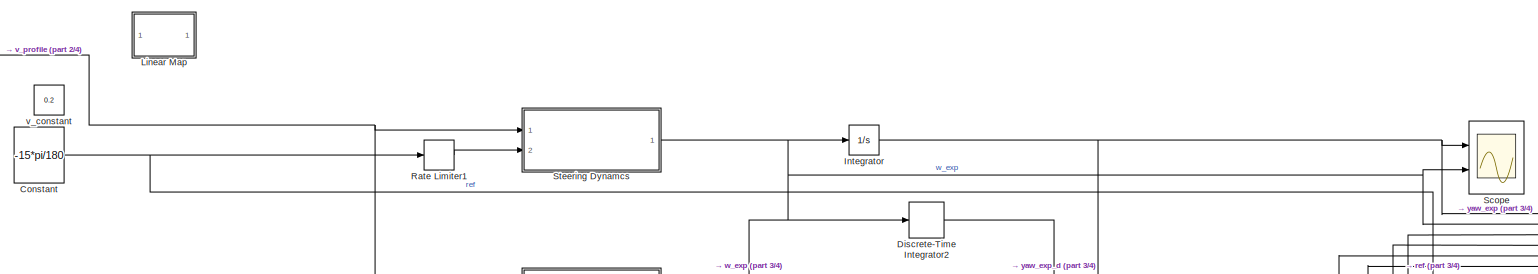
[diagram: root canvas - part 1/4, full width, top band]
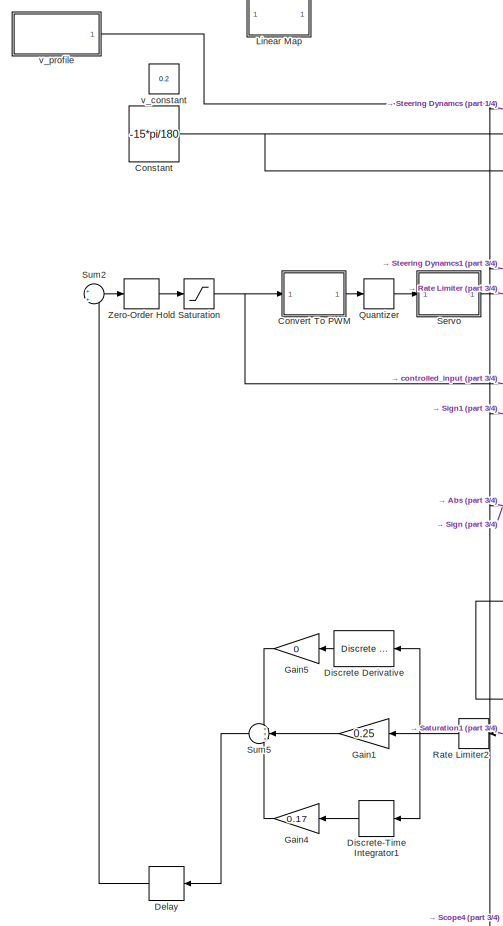
[diagram: root canvas - part 2/4, middle left region]
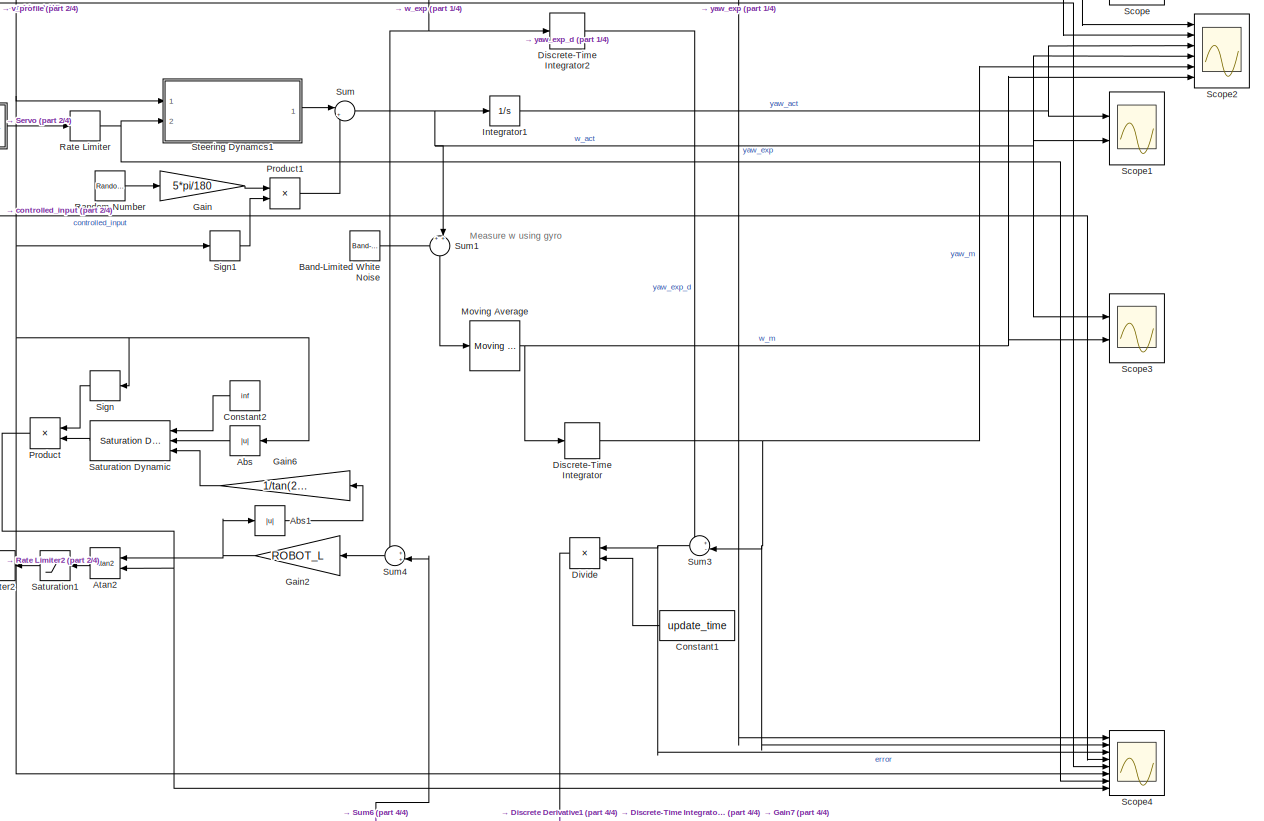
[diagram: root canvas - part 3/4, central region]
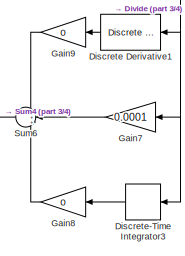
[diagram: root canvas - part 4/4, bottom center region]
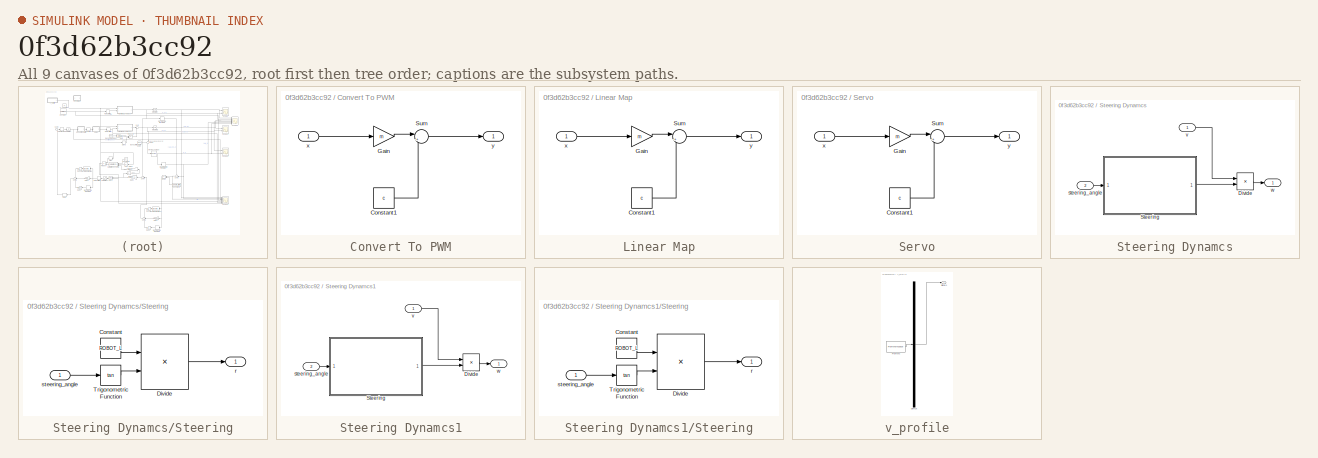
[diagram: thumbnail index - all 9 canvases of the model, root first then tree order]
MODEL slx_0f3d62b3cc92
KIND model
CONFIG AbsTol = auto
CONFIG EnableMultiTasking = off
CONFIG FixedStep = auto
CONFIG MaxStep = auto
CONFIG MinStep = auto
CONFIG RelTol = 1e-3
CONFIG SampleTimeConstraint = Unconstrained
CONFIG SolverName = VariableStepAuto
CONFIG StartTime = 0.0
CONFIG StopTime = 10.0
WORKSPACE source: mxarray member
WORKSPACE ROBOT_L = 0.14
WORKSPACE c = 0
WORKSPACE m = 1
WORKSPACE update_time = 0.02
BLOCK [Abs] Abs
  SaturateOnIntegerOverflow = off
BLOCK [Abs] Abs1
  SaturateOnIntegerOverflow = off
BLOCK [Trigonometry] Atan2
  Operator = atan2
  Ports = [2, 1]
BLOCK [Reference] Band-Limited White Noise  REF=simulink/Sources/Band-Limited
White Noise
  Ports = [0, 1]
  SourceBlock = simulink/Sources/Band-Limited\nWhite Noise
  SourceProductBaseCode = SL
  SourceType = Band-Limited White Noise.
BLOCK [Constant] Constant
  Value = -15*pi/180
BLOCK [Constant] Constant1
  Value = update_time
BLOCK [Constant] Constant2
  Value = inf
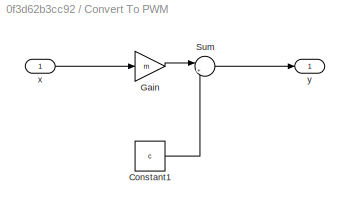
BLOCK [SubSystem] Convert To PWM
  Ports = [1, 1]
  RequestExecContextInheritance = off
BLOCK [Constant] Convert To PWM/Constant1
  Value = c
BLOCK [Gain] Convert To PWM/Gain
  Gain = m
BLOCK [Sum] Convert To PWM/Sum
  Inputs = |++
  Ports = [2, 1]
BLOCK [Inport] Convert To PWM/x
BLOCK [Outport] Convert To PWM/y
BLOCK [Delay] Delay
  DelayLength = 1
  InputPortMap = u0
  Ports = [1, 1]
  SampleTime = update_time
BLOCK [Reference] Discrete Derivative  REF=simulink/Discrete/Discrete Derivative
  Ports = [1, 1]
  SourceBlock = simulink/Discrete/Discrete Derivative
  SourceProductBaseCode = SL
  SourceType = Discrete Derivative
BLOCK [Reference] Discrete Derivative1  REF=simulink/Discrete/Discrete Derivative
  Ports = [1, 1]
  SourceBlock = simulink/Discrete/Discrete Derivative
  SourceProductBaseCode = SL
  SourceType = Discrete Derivative
BLOCK [DiscreteIntegrator] Discrete-Time Integrator
  ICPrevOutput = DiscIntNeverNeededParam
  ICPrevScaledInput = DiscIntNeverNeededParam
  InitialConditionSetting = Auto
  Ports = [1, 1]
  SampleTime = sample_time
BLOCK [DiscreteIntegrator] Discrete-Time Integrator1
  ICPrevOutput = DiscIntNeverNeededParam
  ICPrevScaledInput = DiscIntNeverNeededParam
  InitialConditionSetting = Auto
  Ports = [1, 1]
  SampleTime = sample_time
BLOCK [DiscreteIntegrator] Discrete-Time Integrator2
  ICPrevOutput = DiscIntNeverNeededParam
  ICPrevScaledInput = DiscIntNeverNeededParam
  InitialConditionSetting = Auto
  Ports = [1, 1]
  SampleTime = sample_time
BLOCK [DiscreteIntegrator] Discrete-Time Integrator3
  ICPrevOutput = DiscIntNeverNeededParam
  ICPrevScaledInput = DiscIntNeverNeededParam
  InitialConditionSetting = Auto
  Ports = [1, 1]
  SampleTime = sample_time
BLOCK [Product] Divide
  Inputs = */
  Ports = [2, 1]
BLOCK [Gain] Gain
  Gain = 5*pi/180
BLOCK [Gain] Gain1
  Gain = 0.25
BLOCK [Gain] Gain2
  Gain = ROBOT_L
BLOCK [Gain] Gain4
  Gain = 0.17
BLOCK [Gain] Gain5
  Gain = 0
BLOCK [Gain] Gain6
  Gain = 1/tan(20*pi/180)
BLOCK [Gain] Gain7
  Gain = 0.0001
BLOCK [Gain] Gain8
  Gain = 0
BLOCK [Gain] Gain9
  Gain = 0
BLOCK [Integrator] Integrator
  Ports = [1, 1]
BLOCK [Integrator] Integrator1
  Ports = [1, 1]
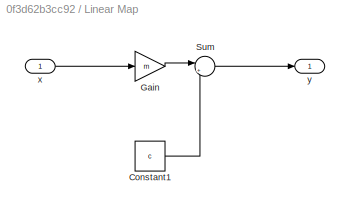
BLOCK [SubSystem] Linear Map
  Ports = [1, 1]
  RequestExecContextInheritance = off
BLOCK [Constant] Linear Map/Constant1
  Value = c
BLOCK [Gain] Linear Map/Gain
  Gain = m
BLOCK [Sum] Linear Map/Sum
  Inputs = |++
  Ports = [2, 1]
BLOCK [Inport] Linear Map/x
BLOCK [Outport] Linear Map/y
BLOCK [Reference] Moving Average  REF=dspstat3/Moving
Average
  Ports = [1, 1]
  SourceBlock = dspstat3/Moving\nAverage
  SourceProductBaseCode = DS
  SourceType = dsp.simulink.MovingAverage
BLOCK [Product] Product
  Ports = [2, 1]
BLOCK [Product] Product1
  Ports = [2, 1]
BLOCK [Quantizer] Quantizer
  QuantizationInterval = 1
BLOCK [RandomNumber] Random Number
  SampleTime = 0.5
BLOCK [RateLimiter] Rate Limiter
  FallingSlewLimit = -pi/4
  RisingSlewLimit = pi/4
  SampleTimeMode = inherited
BLOCK [RateLimiter] Rate Limiter1
  FallingSlewLimit = -pi/4
  RisingSlewLimit = pi/4
  SampleTimeMode = inherited
BLOCK [RateLimiter] Rate Limiter2
  FallingSlewLimit = -pi/4
  RisingSlewLimit = pi/4
  SampleTimeMode = inherited
BLOCK [Saturate] Saturation
  LowerLimit = -20*pi/180
  UpperLimit = 20*pi/180
BLOCK [Reference] Saturation Dynamic  REF=simulink/Discontinuities/Saturation
Dynamic
  Ports = [3, 1]
  SourceBlock = simulink/Discontinuities/Saturation\nDynamic
  SourceProductBaseCode = SL
  SourceType = Saturation Dynamic
BLOCK [Saturate] Saturation1
  LowerLimit = -20*pi/180
  UpperLimit = 20*pi/180
BLOCK [Scope] Scope
  Floating = off
  NumInputPorts = 2
  Ports = [2]
  ScopeSpecificationString = Simulink.scopes.TimeScopeBlockCfg('CurrentConfiguration', extmgr.ConfigurationSet(extmgr.Configuration('Core','General UI',true),extmgr.Configuration('Core','Source UI',true),extmgr.Configuration('Sources','WiredSimulink',true),extmgr.Configuration('Visuals','Time Domain',true,'SerializedDisplays',{struct('MinYLimReal','-1.50714','MaxYLimReal','0.16746','YLabelReal','','MinYLimMag','0.00000','MaxY...<+1363ch>
BLOCK [Scope] Scope1
  Floating = off
  NumInputPorts = 2
  Ports = [2]
  ScopeSpecificationString = Simulink.scopes.TimeScopeBlockCfg('CurrentConfiguration', extmgr.ConfigurationSet(extmgr.Configuration('Core','General UI',true),extmgr.Configuration('Core','Source UI',true),extmgr.Configuration('Sources','WiredSimulink',true,'DataLoggingVariableName','ScopeData1'),extmgr.Configuration('Visuals','Time Domain',true,'SerializedDisplays',{struct('MinYLimReal','-1.24083','MaxYLimReal','0.22239','YLab...<+1405ch>
BLOCK [Scope] Scope2
  Floating = off
  NumInputPorts = 6
  Ports = [6]
  ScopeSpecificationString = Simulink.scopes.TimeScopeBlockCfg('CurrentConfiguration', extmgr.ConfigurationSet(extmgr.Configuration('Core','General UI',true),extmgr.Configuration('Core','Source UI',true),extmgr.Configuration('Sources','WiredSimulink',true,'DataLoggingVariableName','ScopeData2'),extmgr.Configuration('Visuals','Time Domain',true,'SerializedDisplays',{struct('MinYLimReal','-4.06904','MaxYLimReal','3.25675','YLab...<+1457ch>
BLOCK [Scope] Scope3
  Floating = off
  NumInputPorts = 2
  Ports = [2]
  ScopeSpecificationString = Simulink.scopes.TimeScopeBlockCfg('CurrentConfiguration', extmgr.ConfigurationSet(extmgr.Configuration('Core','General UI',true),extmgr.Configuration('Core','Source UI',true),extmgr.Configuration('Sources','WiredSimulink',true,'DataLoggingVariableName','ScopeData3'),extmgr.Configuration('Visuals','Time Domain',true,'SerializedDisplays',{struct('MinYLimReal','-4.06904','MaxYLimReal','3.25675','YLab...<+1396ch>
BLOCK [Scope] Scope4
  Floating = off
  NumInputPorts = 8
  Ports = [8]
  ScopeSpecificationString = Simulink.scopes.TimeScopeBlockCfg('CurrentConfiguration', extmgr.ConfigurationSet(extmgr.Configuration('Core','General UI',true),extmgr.Configuration('Core','Source UI',true),extmgr.Configuration('Sources','WiredSimulink',true,'DataLoggingVariableName','ScopeData4'),extmgr.Configuration('Visuals','Time Domain',true,'SerializedDisplays',{struct('MinYLimReal','-2.93289','MaxYLimReal','1.7038','YLabe...<+1723ch>
BLOCK [SubSystem] Servo
  Ports = [1, 1]
  RequestExecContextInheritance = off
BLOCK [Constant] Servo/Constant1
  Value = c
BLOCK [Gain] Servo/Gain
  Gain = m
BLOCK [Sum] Servo/Sum
  Inputs = |++
  Ports = [2, 1]
BLOCK [Inport] Servo/x
BLOCK [Outport] Servo/y
BLOCK [Signum] Sign
BLOCK [Signum] Sign1
BLOCK [SubSystem] Steering Dynamcs
  Ports = [2, 1]
  RequestExecContextInheritance = off
BLOCK [Product] Steering Dynamcs/Divide
  Inputs = */
  Ports = [2, 1]
BLOCK [SubSystem] Steering Dynamcs/Steering
  Ports = [1, 1]
  RequestExecContextInheritance = off
BLOCK [Constant] Steering Dynamcs/Steering/Constant
  Value = ROBOT_L
BLOCK [Product] Steering Dynamcs/Steering/Divide
  Inputs = */
  Ports = [2, 1]
BLOCK [Trigonometry] Steering Dynamcs/Steering/Trigonometric Function
  NameLocation = right
  Operator = tan
  Ports = [1, 1]
BLOCK [Outport] Steering Dynamcs/Steering/r
BLOCK [Inport] Steering Dynamcs/Steering/steering_angle
BLOCK [Inport] Steering Dynamcs/steering_angle
  Port = 2
BLOCK [Inport] Steering Dynamcs/v
BLOCK [Outport] Steering Dynamcs/w
BLOCK [SubSystem] Steering Dynamcs1
  Ports = [2, 1]
  RequestExecContextInheritance = off
BLOCK [Product] Steering Dynamcs1/Divide
  Inputs = */
  Ports = [2, 1]
BLOCK [SubSystem] Steering Dynamcs1/Steering
  Ports = [1, 1]
  RequestExecContextInheritance = off
BLOCK [Constant] Steering Dynamcs1/Steering/Constant
  Value = ROBOT_L
BLOCK [Product] Steering Dynamcs1/Steering/Divide
  Inputs = */
  Ports = [2, 1]
BLOCK [Trigonometry] Steering Dynamcs1/Steering/Trigonometric Function
  NameLocation = right
  Operator = tan
  Ports = [1, 1]
BLOCK [Outport] Steering Dynamcs1/Steering/r
BLOCK [Inport] Steering Dynamcs1/Steering/steering_angle
BLOCK [Inport] Steering Dynamcs1/steering_angle
  Port = 2
BLOCK [Inport] Steering Dynamcs1/v
BLOCK [Outport] Steering Dynamcs1/w
BLOCK [Sum] Sum
  Inputs = |++
  Ports = [2, 1]
BLOCK [Sum] Sum1
  Inputs = ++|
  NameLocation = left
  Ports = [2, 1]
BLOCK [Sum] Sum2
  Inputs = +|+
  Ports = [2, 1]
BLOCK [Sum] Sum3
  Inputs = +-|
  Ports = [2, 1]
BLOCK [Sum] Sum4
  Inputs = ++|
  Ports = [2, 1]
BLOCK [Sum] Sum5
  Inputs = +++
  Ports = [3, 1]
BLOCK [Sum] Sum6
  Inputs = +++
  Ports = [3, 1]
BLOCK [ZeroOrderHold] Zero-Order Hold
  SampleTime = update_time
BLOCK [Constant] v_constant
  Value = 0.2
BLOCK [SubSystem] v_profile
  ClipboardFcn = sigbuilder_block('clipboard');
  CloseFcn = sigbuilder_block('close');
  ContinueFcn = sigbuilder_block('continue');
  CopyFcn = sigbuilder_block('copy');
  DeleteFcn = sigbuilder_block('delete');
  LoadFcn = sigbuilder_block('load');
  MaskHideContents = on
  ModelCloseFcn = sigbuilder_block('modelClose');
  NameChangeFcn = sigbuilder_block('namechange');
  OpenFcn = sigbuilder_block('open',[437.6 199.2 550.4 400 ]);
  PauseFcn = sigbuilder_block('pause');
  Ports = [0, 1]
  PreSaveFcn = sigbuilder_block('preSave');
  RequestExecContextInheritance = off
  StartFcn = sigbuilder_block('start');
  StopFcn = sigbuilder_block('stop');
  Tag = STV Subsys
BLOCK [Demux] v_profile/Demux
  DisplayOption = none
  Outputs = 1
  Ports = [1, 1]
  Tag = STV Demux
BLOCK [FromWorkspace] v_profile/FromWs
  Tag = STV FromWs
  VariableName = tuvar
BLOCK [Outport] v_profile/Signal 1
  Tag = STV Outport
ANNOTATION (root): Measure w using gyro
LINE Abs1:1 -> Gain6:1
LINE Abs:1 -> Saturation Dynamic:2
LINE Atan2:1 -> Saturation1:1
LINE Band-Limited White Noise:1 -> Sum1:1
LINE Constant1:1 -> Divide:2
LINE Constant2:1 -> Saturation Dynamic:1
NET Constant:1 -> Rate Limiter1:1, Scope4:5
LINE Convert To PWM/Constant1:1 -> Convert To PWM/Sum:2
LINE Convert To PWM/Gain:1 -> Convert To PWM/Sum:1
LINE Convert To PWM/Sum:1 -> Convert To PWM/y:1
LINE Convert To PWM/x:1 -> Convert To PWM/Gain:1
LINE Convert To PWM:1 -> Quantizer:1
LINE Delay:1 -> Sum2:2
LINE Discrete Derivative1:1 -> Gain9:1
LINE Discrete Derivative:1 -> Gain5:1
LINE Discrete-Time Integrator1:1 -> Gain4:1
LINE Discrete-Time Integrator2:1 -> Sum3:1
LINE Discrete-Time Integrator3:1 -> Gain8:1
NET Discrete-Time Integrator:1 -> Scope2:5, Scope4:2, Sum3:2
NET Divide:1 -> Discrete Derivative1:1, Discrete-Time Integrator3:1, Gain7:1
LINE Gain1:1 -> Sum5:2
NET Gain2:1 -> Abs1:1, Atan2:1
LINE Gain4:1 -> Sum5:3
LINE Gain5:1 -> Sum5:1
LINE Gain6:1 -> Saturation Dynamic:3
LINE Gain7:1 -> Sum6:2
LINE Gain8:1 -> Sum6:3
LINE Gain9:1 -> Sum6:1
LINE Gain:1 -> Product1:1
NET Integrator1:1 -> Scope1:1, Scope2:3
NET Integrator:1 -> Scope2:1, Scope4:1, Scope:1
LINE Linear Map/Constant1:1 -> Linear Map/Sum:2
LINE Linear Map/Gain:1 -> Linear Map/Sum:1
LINE Linear Map/Sum:1 -> Linear Map/y:1
LINE Linear Map/x:1 -> Linear Map/Gain:1
NET Moving Average:1 -> Discrete-Time Integrator:1, Scope2:6, Scope3:2
LINE Product1:1 -> Sum:2
NET Product:1 -> Atan2:2, Scope4:8
LINE Quantizer:1 -> Servo:1
LINE Random Number:1 -> Gain:1
LINE Rate Limiter1:1 -> Steering Dynamcs:2
NET Rate Limiter2:1 -> Discrete Derivative:1, Discrete-Time Integrator1:1, Gain1:1
NET Rate Limiter:1 -> Scope4:7, Steering Dynamcs1:2
LINE Saturation Dynamic:1 -> Product:2
LINE Saturation1:1 -> Rate Limiter2:1
NET Saturation:1 -> Convert To PWM:1, Scope4:4
LINE Servo/Constant1:1 -> Servo/Sum:2
LINE Servo/Gain:1 -> Servo/Sum:1
LINE Servo/Sum:1 -> Servo/y:1
LINE Servo/x:1 -> Servo/Gain:1
LINE Servo:1 -> Rate Limiter:1
LINE Sign1:1 -> Product1:2
LINE Sign:1 -> Product:1
LINE Steering Dynamcs/Divide:1 -> Steering Dynamcs/w:1
LINE Steering Dynamcs/Steering/Constant:1 -> Steering Dynamcs/Steering/Divide:1
LINE Steering Dynamcs/Steering/Divide:1 -> Steering Dynamcs/Steering/r:1
LINE Steering Dynamcs/Steering/Trigonometric Function:1 -> Steering Dynamcs/Steering/Divide:2
LINE Steering Dynamcs/Steering/steering_angle:1 -> Steering Dynamcs/Steering/Trigonometric Function:1
LINE Steering Dynamcs/Steering:1 -> Steering Dynamcs/Divide:2
LINE Steering Dynamcs/steering_angle:1 -> Steering Dynamcs/Steering:1
LINE Steering Dynamcs/v:1 -> Steering Dynamcs/Divide:1
LINE Steering Dynamcs1/Divide:1 -> Steering Dynamcs1/w:1
LINE Steering Dynamcs1/Steering/Constant:1 -> Steering Dynamcs1/Steering/Divide:1
LINE Steering Dynamcs1/Steering/Divide:1 -> Steering Dynamcs1/Steering/r:1
LINE Steering Dynamcs1/Steering/Trigonometric Function:1 -> Steering Dynamcs1/Steering/Divide:2
LINE Steering Dynamcs1/Steering/steering_angle:1 -> Steering Dynamcs1/Steering/Trigonometric Function:1
LINE Steering Dynamcs1/Steering:1 -> Steering Dynamcs1/Divide:2
LINE Steering Dynamcs1/steering_angle:1 -> Steering Dynamcs1/Steering:1
LINE Steering Dynamcs1/v:1 -> Steering Dynamcs1/Divide:1
LINE Steering Dynamcs1:1 -> Sum:1
NET Steering Dynamcs:1 -> Discrete-Time Integrator2:1, Integrator:1, Scope2:2, Scope:2, Sum4:1
LINE Sum1:1 -> Moving Average:1
LINE Sum2:1 -> Zero-Order Hold:1
NET Sum3:1 -> Divide:1, Scope4:3
LINE Sum4:1 -> Gain2:1
LINE Sum5:1 -> Delay:1
LINE Sum6:1 -> Sum4:2
NET Sum:1 -> Integrator1:1, Scope1:2, Scope2:4, Scope3:1, Sum1:2
LINE Zero-Order Hold:1 -> Saturation:1
NET v_profile:1 -> Abs:1, Scope4:6, Sign1:1, Sign:1, Steering Dynamcs1:1, Steering Dynamcs:1
note: NET lines group one-source signal fan-out (src -> all destinations, sorted); 1:1 wires keep LINE
